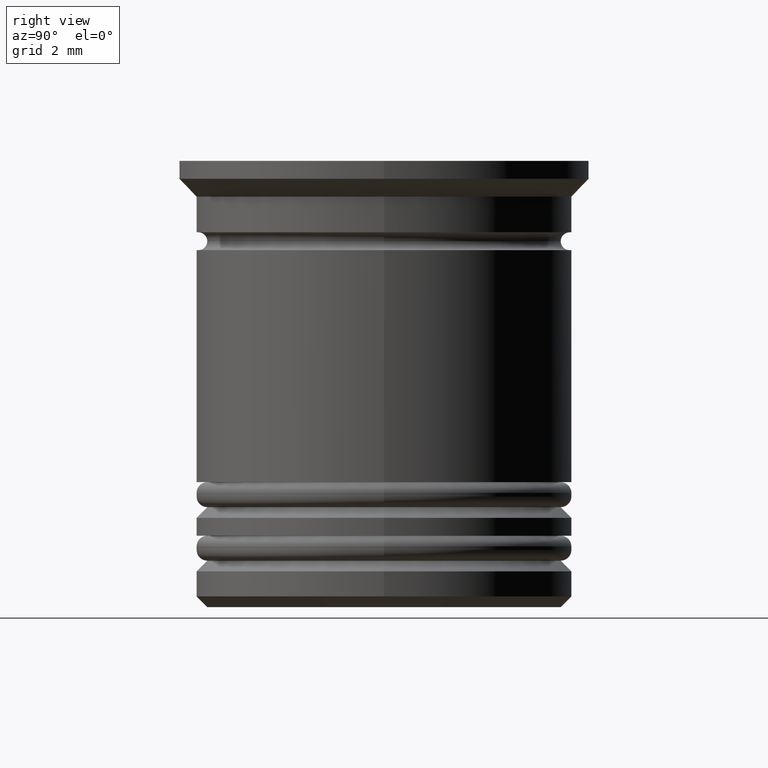
[diagram: clean part render]
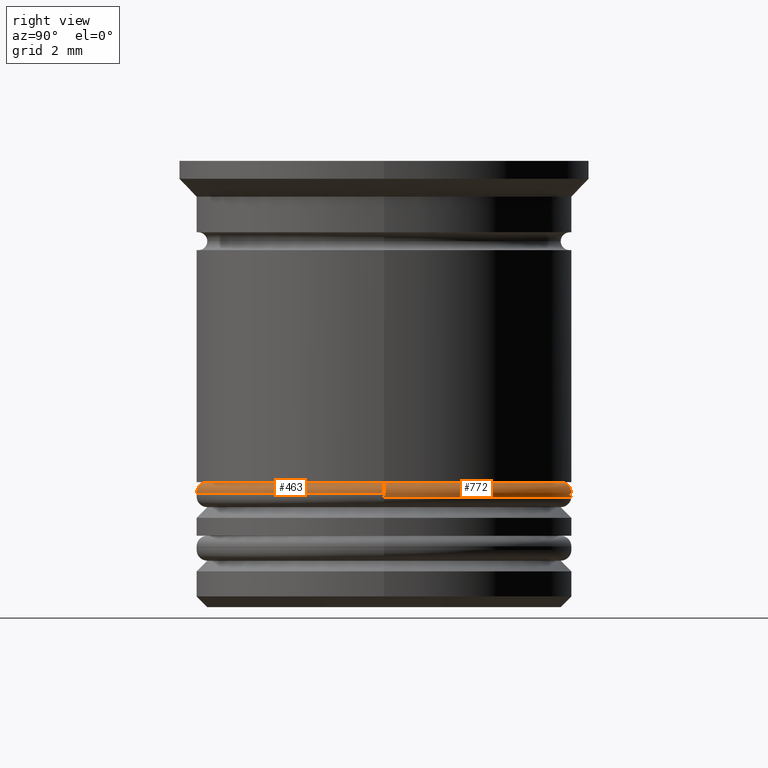
[diagram: same view with one multi-face feature highlighted, each face labeled with its STEP entity id]
A machine part, right view. The highlighted faces form ONE feature: a constant-radius fillet chain: 2 tangent blend faces with common blend radius 0.3 mm. The faces share edges in the B-rep.
Their STEP definitions:
[1] entity #772 (Torus):
#10 = TOROIDAL_SURFACE ( 'NONE', #624, 4.950000000000000178, 0.2999999999999999889 ) ;
#121 = VERTEX_POINT ( 'NONE', #458 ) ;
#135 = AXIS2_PLACEMENT_3D ( 'NONE', #1778, #1914, #537 ) ;
#162 = CARTESIAN_POINT ( 'NONE',  ( 4.950000000000000178, 6.245698675651501825E-16, -9.000000000000001776 ) ) ;
#201 = CIRCLE ( 'NONE', #1586, 0.2999999999999999334 ) ;
#298 = DIRECTION ( 'NONE',  ( 0.000000000000000000, 0.000000000000000000, -1.000000000000000000 ) ) ;
#307 = DIRECTION ( 'NONE',  ( 0.000000000000000000, 0.000000000000000000, -1.000000000000000000 ) ) ;
#428 = DIRECTION ( 'NONE',  ( -0.000000000000000000, -1.000000000000000000, -0.000000000000000000 ) ) ;
#434 = EDGE_CURVE ( 'NONE', #1213, #121, #816, .T. ) ;
#458 = CARTESIAN_POINT ( 'NONE',  ( -4.950000000000000178, 0.000000000000000000, -9.000000000000001776 ) ) ;
#522 = CARTESIAN_POINT ( 'NONE',  ( 0.000000000000000000, 0.000000000000000000, -9.300000000000000711 ) ) ;
#537 = DIRECTION ( 'NONE',  ( -1.000000000000000000, 0.000000000000000000, 0.000000000000000000 ) ) ;
#576 = EDGE_CURVE ( 'NONE', #1094, #992, #1901, .T. ) ;
#601 = DIRECTION ( 'NONE',  ( -1.000000000000000000, -1.224646799147353207E-16, 0.000000000000000000 ) ) ;
#620 = EDGE_CURVE ( 'NONE', #1213, #992, #1164, .T. ) ;
#624 = AXIS2_PLACEMENT_3D ( 'NONE', #522, #1117, #1596 ) ;
#688 = EDGE_LOOP ( 'NONE', ( #1173, #801, #1429, #1057 ) ) ;
#747 = DIRECTION ( 'NONE',  ( -1.224646799147353207E-16, 1.000000000000000000, 0.000000000000000000 ) ) ;
#772 = ADVANCED_FACE ( 'NONE', ( #1063 ), #10, .T. ) ;
#801 = ORIENTED_EDGE ( 'NONE', *, *, #620, .T. ) ;
#816 = CIRCLE ( 'NONE', #135, 4.950000000000000178 ) ;
#992 = VERTEX_POINT ( 'NONE', #1858 ) ;
#1057 = ORIENTED_EDGE ( 'NONE', *, *, #1256, .F. ) ;
#1063 = FACE_OUTER_BOUND ( 'NONE', #688, .T. ) ;
#1094 = VERTEX_POINT ( 'NONE', #1114 ) ;
#1114 = CARTESIAN_POINT ( 'NONE',  ( -5.250000000000000000, 6.429395695523603167E-16, -9.300000000000000711 ) ) ;
#1117 = DIRECTION ( 'NONE',  ( 0.000000000000000000, 0.000000000000000000, -1.000000000000000000 ) ) ;
#1164 = CIRCLE ( 'NONE', #1783, 0.2999999999999999334 ) ;
#1173 = ORIENTED_EDGE ( 'NONE', *, *, #434, .F. ) ;
#1213 = VERTEX_POINT ( 'NONE', #162 ) ;
#1256 = EDGE_CURVE ( 'NONE', #121, #1094, #201, .T. ) ;
#1289 = AXIS2_PLACEMENT_3D ( 'NONE', #1686, #307, #1339 ) ;
#1339 = DIRECTION ( 'NONE',  ( -1.000000000000000000, 0.000000000000000000, 0.000000000000000000 ) ) ;
#1429 = ORIENTED_EDGE ( 'NONE', *, *, #576, .F. ) ;
#1516 = CARTESIAN_POINT ( 'NONE',  ( -4.950000000000000178, 0.000000000000000000, -9.300000000000000711 ) ) ;
#1586 = AXIS2_PLACEMENT_3D ( 'NONE', #1516, #428, #298 ) ;
#1596 = DIRECTION ( 'NONE',  ( -1.000000000000000000, 0.000000000000000000, 0.000000000000000000 ) ) ;
#1686 = CARTESIAN_POINT ( 'NONE',  ( 0.000000000000000000, 0.000000000000000000, -9.300000000000000711 ) ) ;
#1778 = CARTESIAN_POINT ( 'NONE',  ( 0.000000000000000000, 0.000000000000000000, -9.000000000000001776 ) ) ;
#1783 = AXIS2_PLACEMENT_3D ( 'NONE', #1976, #747, #601 ) ;
#1858 = CARTESIAN_POINT ( 'NONE',  ( 5.250000000000000000, 0.000000000000000000, -9.300000000000000711 ) ) ;
#1901 = CIRCLE ( 'NONE', #1289, 5.250000000000000000 ) ;
#1914 = DIRECTION ( 'NONE',  ( -0.000000000000000000, -0.000000000000000000, 1.000000000000000000 ) ) ;
#1976 = CARTESIAN_POINT ( 'NONE',  ( 4.950000000000000178, 6.062001655779398511E-16, -9.300000000000000711 ) ) ;
[2] entity #463 (Torus):
#24 = CARTESIAN_POINT ( 'NONE',  ( 0.000000000000000000, 0.000000000000000000, -9.000000000000001776 ) ) ;
#73 = EDGE_LOOP ( 'NONE', ( #184, #1501, #306, #1698 ) ) ;
#79 = DIRECTION ( 'NONE',  ( -1.000000000000000000, 0.000000000000000000, 0.000000000000000000 ) ) ;
#108 = CIRCLE ( 'NONE', #169, 4.950000000000000178 ) ;
#121 = VERTEX_POINT ( 'NONE', #458 ) ;
#162 = CARTESIAN_POINT ( 'NONE',  ( 4.950000000000000178, 6.245698675651501825E-16, -9.000000000000001776 ) ) ;
#169 = AXIS2_PLACEMENT_3D ( 'NONE', #24, #641, #806 ) ;
#184 = ORIENTED_EDGE ( 'NONE', *, *, #620, .F. ) ;
#201 = CIRCLE ( 'NONE', #1586, 0.2999999999999999334 ) ;
#298 = DIRECTION ( 'NONE',  ( 0.000000000000000000, 0.000000000000000000, -1.000000000000000000 ) ) ;
#306 = ORIENTED_EDGE ( 'NONE', *, *, #1256, .T. ) ;
#428 = DIRECTION ( 'NONE',  ( -0.000000000000000000, -1.000000000000000000, -0.000000000000000000 ) ) ;
#458 = CARTESIAN_POINT ( 'NONE',  ( -4.950000000000000178, 0.000000000000000000, -9.000000000000001776 ) ) ;
#463 = ADVANCED_FACE ( 'NONE', ( #995 ), #1225, .T. ) ;
#558 = AXIS2_PLACEMENT_3D ( 'NONE', #1212, #1545, #1053 ) ;
#601 = DIRECTION ( 'NONE',  ( -1.000000000000000000, -1.224646799147353207E-16, 0.000000000000000000 ) ) ;
#620 = EDGE_CURVE ( 'NONE', #1213, #992, #1164, .T. ) ;
#641 = DIRECTION ( 'NONE',  ( -0.000000000000000000, -0.000000000000000000, 1.000000000000000000 ) ) ;
#691 = AXIS2_PLACEMENT_3D ( 'NONE', #1464, #1278, #79 ) ;
#747 = DIRECTION ( 'NONE',  ( -1.224646799147353207E-16, 1.000000000000000000, 0.000000000000000000 ) ) ;
#806 = DIRECTION ( 'NONE',  ( -1.000000000000000000, 0.000000000000000000, 0.000000000000000000 ) ) ;
#992 = VERTEX_POINT ( 'NONE', #1858 ) ;
#995 = FACE_OUTER_BOUND ( 'NONE', #73, .T. ) ;
#1053 = DIRECTION ( 'NONE',  ( -1.000000000000000000, 0.000000000000000000, 0.000000000000000000 ) ) ;
#1064 = EDGE_CURVE ( 'NONE', #121, #1213, #108, .T. ) ;
#1094 = VERTEX_POINT ( 'NONE', #1114 ) ;
#1114 = CARTESIAN_POINT ( 'NONE',  ( -5.250000000000000000, 6.429395695523603167E-16, -9.300000000000000711 ) ) ;
#1164 = CIRCLE ( 'NONE', #1783, 0.2999999999999999334 ) ;
#1212 = CARTESIAN_POINT ( 'NONE',  ( 0.000000000000000000, 0.000000000000000000, -9.300000000000000711 ) ) ;
#1213 = VERTEX_POINT ( 'NONE', #162 ) ;
#1221 = EDGE_CURVE ( 'NONE', #992, #1094, #1905, .T. ) ;
#1225 = TOROIDAL_SURFACE ( 'NONE', #691, 4.950000000000000178, 0.2999999999999999889 ) ;
#1256 = EDGE_CURVE ( 'NONE', #121, #1094, #201, .T. ) ;
#1278 = DIRECTION ( 'NONE',  ( 0.000000000000000000, 0.000000000000000000, -1.000000000000000000 ) ) ;
#1464 = CARTESIAN_POINT ( 'NONE',  ( 0.000000000000000000, 0.000000000000000000, -9.300000000000000711 ) ) ;
#1501 = ORIENTED_EDGE ( 'NONE', *, *, #1064, .F. ) ;
#1516 = CARTESIAN_POINT ( 'NONE',  ( -4.950000000000000178, 0.000000000000000000, -9.300000000000000711 ) ) ;
#1545 = DIRECTION ( 'NONE',  ( 0.000000000000000000, 0.000000000000000000, -1.000000000000000000 ) ) ;
#1586 = AXIS2_PLACEMENT_3D ( 'NONE', #1516, #428, #298 ) ;
#1698 = ORIENTED_EDGE ( 'NONE', *, *, #1221, .F. ) ;
#1783 = AXIS2_PLACEMENT_3D ( 'NONE', #1976, #747, #601 ) ;
#1858 = CARTESIAN_POINT ( 'NONE',  ( 5.250000000000000000, 0.000000000000000000, -9.300000000000000711 ) ) ;
#1905 = CIRCLE ( 'NONE', #558, 5.250000000000000000 ) ;
#1976 = CARTESIAN_POINT ( 'NONE',  ( 4.950000000000000178, 6.062001655779398511E-16, -9.300000000000000711 ) ) ;